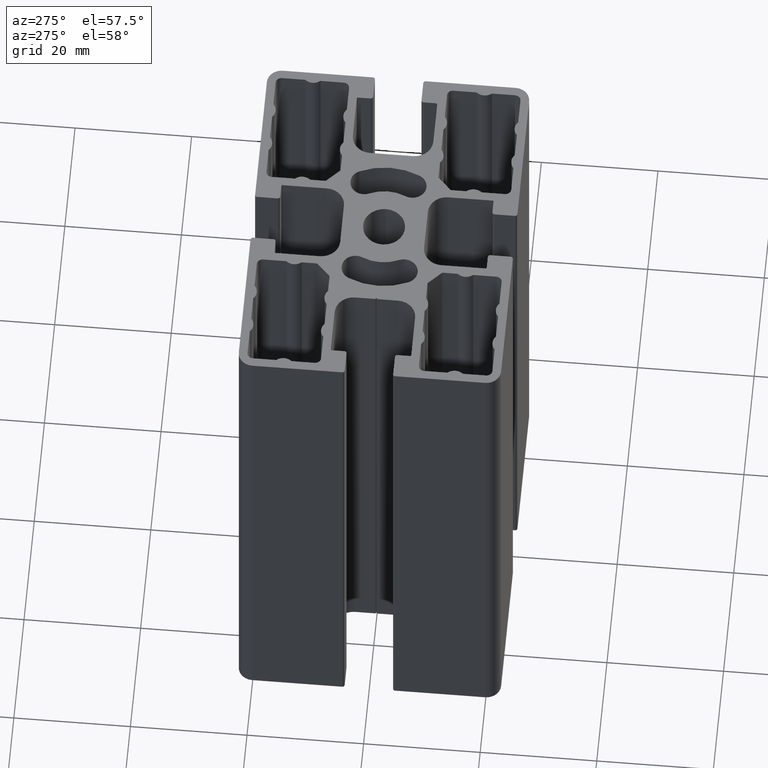
[diagram: clean part render]
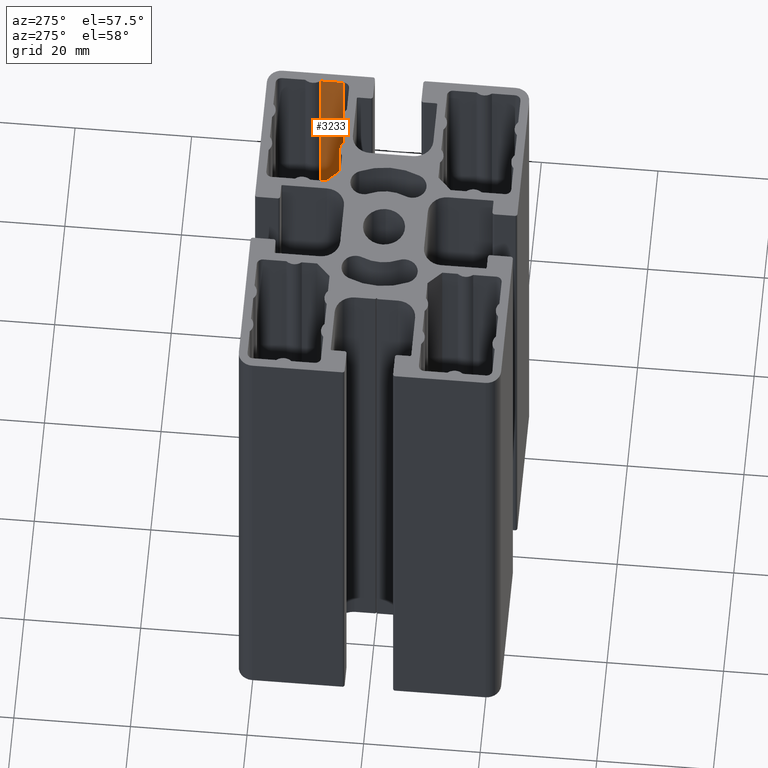
[diagram: same view with one face highlighted and labeled with its STEP entity id]
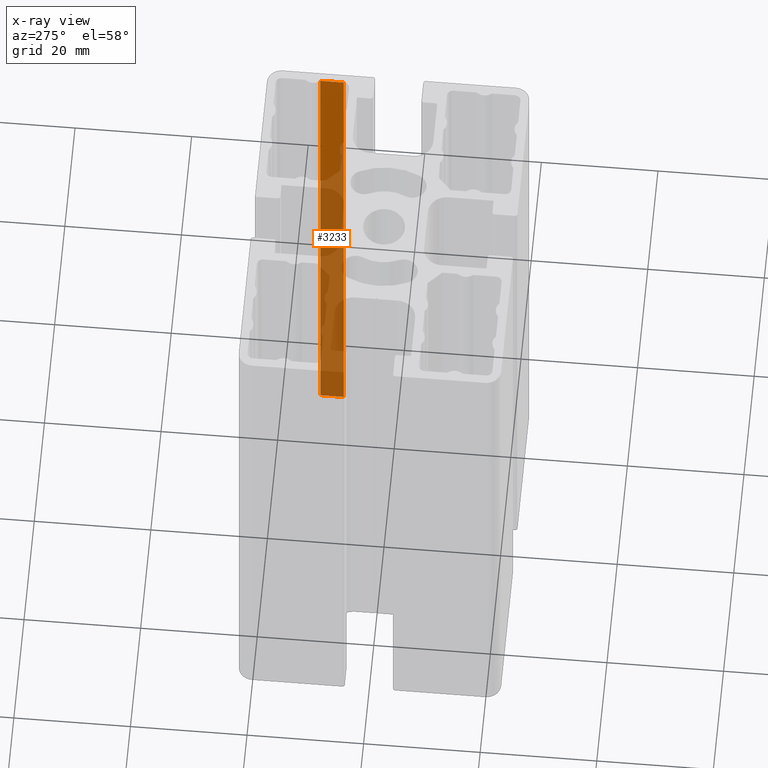
[diagram: x-ray of the same camera — body ghosted, the highlighted face saturated]
A machine part, auxiliary view. The second image highlights one B-rep face of the part: STEP entity #3233.
The next image is the same camera in x-ray: the body ghosted, the highlighted face saturated — about 71% of this face is hidden behind the body in this view.
In plain terms, the highlighted planar face has unit normal (1, 0, 0).
Its self-contained STEP definition (entity closure, byte-faithful):
#67=PLANE('',#3465);
#184=FACE_OUTER_BOUND('',#350,.T.);
#350=EDGE_LOOP('',(#2377,#2378,#2379,#2380));
#605=LINE('',#5063,#934);
#606=LINE('',#5067,#935);
#607=LINE('',#5069,#936);
#608=LINE('',#5070,#937);
#934=VECTOR('',#4069,100.);
#935=VECTOR('',#4074,3.97712434041068);
#936=VECTOR('',#4075,100.);
#937=VECTOR('',#4076,3.97712434041068);
#1420=VERTEX_POINT('',#5060);
#1421=VERTEX_POINT('',#5062);
#1422=VERTEX_POINT('',#5066);
#1423=VERTEX_POINT('',#5068);
#1816=EDGE_CURVE('',#1420,#1421,#605,.T.);
#1818=EDGE_CURVE('',#1422,#1420,#606,.T.);
#1819=EDGE_CURVE('',#1422,#1423,#607,.T.);
#1820=EDGE_CURVE('',#1421,#1423,#608,.T.);
#2377=ORIENTED_EDGE('',*,*,#1818,.F.);
#2378=ORIENTED_EDGE('',*,*,#1819,.T.);
#2379=ORIENTED_EDGE('',*,*,#1820,.F.);
#2380=ORIENTED_EDGE('',*,*,#1816,.F.);
#3233=ADVANCED_FACE('',(#184),#67,.F.);
#3465=AXIS2_PLACEMENT_3D('',#5065,#4072,#4073);
#4069=DIRECTION('',(0.,0.,1.));
#4072=DIRECTION('center_axis',(1.,0.,0.));
#4073=DIRECTION('ref_axis',(0.,1.,0.));
#4074=DIRECTION('',(0.,1.,0.));
#4075=DIRECTION('',(0.,0.,1.));
#4076=DIRECTION('',(0.,-1.,0.));
#5060=CARTESIAN_POINT('',(28.4999999709299,13.3771243308229,0.));
#5062=CARTESIAN_POINT('',(28.4999999709299,13.3771243308229,100.));
#5063=CARTESIAN_POINT('',(28.4999999709299,13.3771243308229,0.));
#5065=CARTESIAN_POINT('Origin',(28.4999999709299,9.3999999904122,0.));
#5066=CARTESIAN_POINT('',(28.4999999709299,9.3999999904122,0.));
#5067=CARTESIAN_POINT('',(28.4999999709299,4.69999999520616,0.));
#5068=CARTESIAN_POINT('',(28.4999999709299,9.3999999904122,100.));
#5069=CARTESIAN_POINT('',(28.4999999709299,9.3999999904122,0.));
#5070=CARTESIAN_POINT('',(28.4999999709299,4.69999999520616,100.));